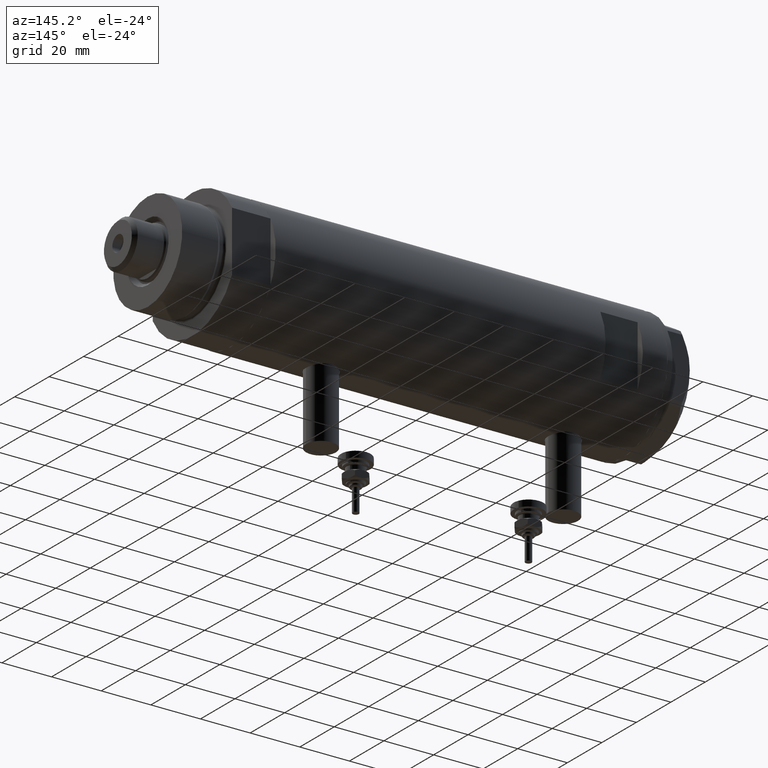
[diagram: clean part render]
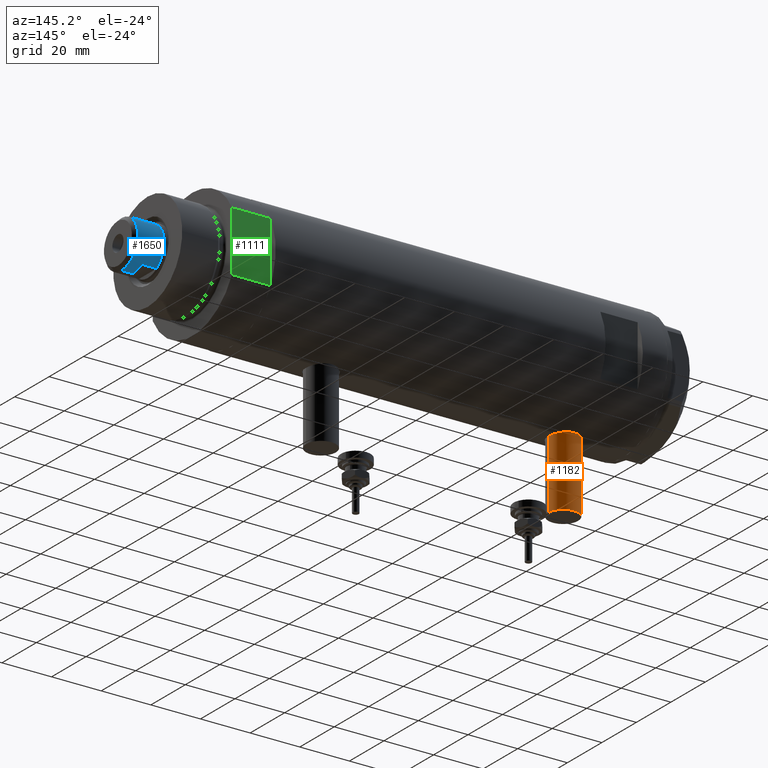
[diagram: same view with three faces highlighted in distinct colors, each labeled with its STEP entity id]
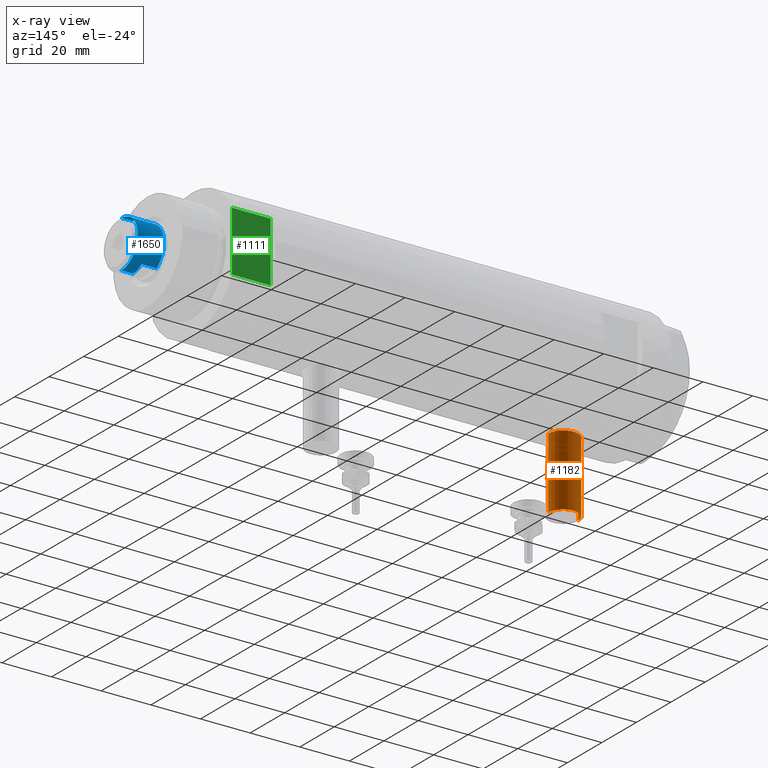
[diagram: x-ray of the same camera — body ghosted, the three highlighted faces saturated]
A machine part, auxiliary view with three faces highlighted in distinct colors.
The next image is the same camera in x-ray (body ghosted, the three faces saturated) — at least one of them is partly hidden behind the body in this view.
Their STEP definitions:

[orange] entity #1182 — the highlighted cylindrical surface (edge-blend (fillet) strip) has radius 6 mm, axis along (0, 0, 1).
#272 = CARTESIAN_POINT ( 'NONE',  ( -53.40000000000000568, 7.347880794884112834E-16, 60.95000000000000284 ) ) ;
#311 = AXIS2_PLACEMENT_3D ( 'NONE', #2004, #5467, #2961 ) ;
#419 = FACE_OUTER_BOUND ( 'NONE', #3730, .T. ) ;
#555 = EDGE_CURVE ( 'NONE', #4449, #6210, #3184, .T. ) ;
#969 = CARTESIAN_POINT ( 'NONE',  ( -24.80000000000000426, 7.347880794884108889E-16, 60.95000000000000284 ) ) ;
#1056 = ORIENTED_EDGE ( 'NONE', *, *, #555, .T. ) ;
#1144 = LINE ( 'NONE', #3613, #4295 ) ;
#1182 = ADVANCED_FACE ( 'NONE', ( #419 ), #3771, .T. ) ;
#1190 = VERTEX_POINT ( 'NONE', #5134 ) ;
#1294 = ORIENTED_EDGE ( 'NONE', *, *, #1890, .F. ) ;
#1311 = DIRECTION ( 'NONE',  ( 0.000000000000000000, 0.000000000000000000, -1.000000000000000000 ) ) ;
#1335 = EDGE_CURVE ( 'NONE', #1190, #6242, #1144, .T. ) ;
#1346 = DIRECTION ( 'NONE',  ( 1.000000000000000000, -0.000000000000000000, -0.000000000000000000 ) ) ;
#1551 = EDGE_CURVE ( 'NONE', #6210, #6242, #5401, .T. ) ;
#1643 = CIRCLE ( 'NONE', #2873, 5.999999999999998224 ) ;
#1678 = DIRECTION ( 'NONE',  ( 1.000000000000000000, -0.000000000000000000, -0.000000000000000000 ) ) ;
#1890 = EDGE_CURVE ( 'NONE', #4449, #1190, #1643, .T. ) ;
#1904 = CARTESIAN_POINT ( 'NONE',  ( -53.40000000000000568, 0.000000000000000000, 54.95000000000000284 ) ) ;
#1915 = CARTESIAN_POINT ( 'NONE',  ( -53.40000000000000568, 7.347880794884108889E-16, 60.95000000000000284 ) ) ;
#2004 = CARTESIAN_POINT ( 'NONE',  ( -24.80000000000000426, 0.000000000000000000, 54.95000000000000284 ) ) ;
#2282 = CARTESIAN_POINT ( 'NONE',  ( -53.40000000000000568, 0.000000000000000000, 54.95000000000000284 ) ) ;
#2295 = DIRECTION ( 'NONE',  ( -1.000000000000000000, 0.000000000000000000, 0.000000000000000000 ) ) ;
#2312 = ORIENTED_EDGE ( 'NONE', *, *, #1335, .F. ) ;
#2362 = AXIS2_PLACEMENT_3D ( 'NONE', #2282, #1346, #1311 ) ;
#2873 = AXIS2_PLACEMENT_3D ( 'NONE', #1904, #2295, #5241 ) ;
#2961 = DIRECTION ( 'NONE',  ( 0.000000000000000000, 0.000000000000000000, 1.000000000000000000 ) ) ;
#3111 = DIRECTION ( 'NONE',  ( 1.000000000000000000, -0.000000000000000000, -0.000000000000000000 ) ) ;
#3184 = LINE ( 'NONE', #272, #5797 ) ;
#3286 = ORIENTED_EDGE ( 'NONE', *, *, #1551, .T. ) ;
#3613 = CARTESIAN_POINT ( 'NONE',  ( -53.40000000000000568, 0.000000000000000000, 48.95000000000000995 ) ) ;
#3730 = EDGE_LOOP ( 'NONE', ( #1294, #1056, #3286, #2312 ) ) ;
#3771 = CYLINDRICAL_SURFACE ( 'NONE', #2362, 5.999999999999998224 ) ;
#4295 = VECTOR ( 'NONE', #3111, 1000.000000000000000 ) ;
#4449 = VERTEX_POINT ( 'NONE', #1915 ) ;
#5134 = CARTESIAN_POINT ( 'NONE',  ( -53.40000000000000568, 0.000000000000000000, 48.95000000000000995 ) ) ;
#5241 = DIRECTION ( 'NONE',  ( 0.000000000000000000, 0.000000000000000000, 1.000000000000000000 ) ) ;
#5401 = CIRCLE ( 'NONE', #311, 5.999999999999998224 ) ;
#5408 = CARTESIAN_POINT ( 'NONE',  ( -24.80000000000000426, 0.000000000000000000, 48.95000000000000995 ) ) ;
#5467 = DIRECTION ( 'NONE',  ( -1.000000000000000000, 0.000000000000000000, 0.000000000000000000 ) ) ;
#5797 = VECTOR ( 'NONE', #1678, 1000.000000000000000 ) ;
#6210 = VERTEX_POINT ( 'NONE', #969 ) ;
#6242 = VERTEX_POINT ( 'NONE', #5408 ) ;

[blue] entity #1650 — the highlighted cylindrical surface (edge-blend (fillet) strip) has radius 9.5 mm, axis along (-1, -0, 0).
#123 = VERTEX_POINT ( 'NONE', #5054 ) ;
#131 = CIRCLE ( 'NONE', #2589, 9.500000000000000000 ) ;
#234 = CARTESIAN_POINT ( 'NONE',  ( 9.500000000000000000, 1.163414459189985485E-15, 173.6000000000000227 ) ) ;
#386 = LINE ( 'NONE', #4194, #613 ) ;
#613 = VECTOR ( 'NONE', #6130, 1000.000000000000000 ) ;
#699 = LINE ( 'NONE', #5101, #4384 ) ;
#770 = CARTESIAN_POINT ( 'NONE',  ( 9.500000000000001776, 1.163414459189985682E-15, 178.2000000000000171 ) ) ;
#808 = DIRECTION ( 'NONE',  ( -0.000000000000000000, -0.000000000000000000, -1.000000000000000000 ) ) ;
#934 = AXIS2_PLACEMENT_3D ( 'NONE', #1392, #1295, #2832 ) ;
#947 = EDGE_CURVE ( 'NONE', #5359, #2592, #699, .T. ) ;
#1018 = AXIS2_PLACEMENT_3D ( 'NONE', #5370, #4955, #5981 ) ;
#1129 = CARTESIAN_POINT ( 'NONE',  ( 9.500000000000001776, 1.163414459189985682E-15, 173.6000000000000227 ) ) ;
#1189 = EDGE_CURVE ( 'NONE', #3319, #1975, #386, .T. ) ;
#1199 = VERTEX_POINT ( 'NONE', #770 ) ;
#1295 = DIRECTION ( 'NONE',  ( 0.000000000000000000, 0.000000000000000000, -1.000000000000000000 ) ) ;
#1332 = VECTOR ( 'NONE', #1520, 1000.000000000000000 ) ;
#1368 = CARTESIAN_POINT ( 'NONE',  ( -7.982950582334830791, 5.149999999999999467, 173.6000000000000227 ) ) ;
#1392 = CARTESIAN_POINT ( 'NONE',  ( 0.000000000000000000, 0.000000000000000000, 178.2000000000000171 ) ) ;
#1520 = DIRECTION ( 'NONE',  ( -0.000000000000000000, -0.000000000000000000, -1.000000000000000000 ) ) ;
#1541 = EDGE_CURVE ( 'NONE', #1199, #2161, #1614, .T. ) ;
#1557 = FACE_OUTER_BOUND ( 'NONE', #2328, .T. ) ;
#1598 = CARTESIAN_POINT ( 'NONE',  ( 0.000000000000000000, 0.000000000000000000, 167.6000000000000227 ) ) ;
#1614 = LINE ( 'NONE', #1129, #1332 ) ;
#1650 = ADVANCED_FACE ( 'NONE', ( #1557 ), #3445, .T. ) ;
#1653 = ORIENTED_EDGE ( 'NONE', *, *, #1541, .T. ) ;
#1698 = ORIENTED_EDGE ( 'NONE', *, *, #1189, .F. ) ;
#1702 = DIRECTION ( 'NONE',  ( -0.000000000000000000, -0.000000000000000000, -1.000000000000000000 ) ) ;
#1744 = DIRECTION ( 'NONE',  ( 1.000000000000000000, 0.000000000000000000, 0.000000000000000000 ) ) ;
#1753 = AXIS2_PLACEMENT_3D ( 'NONE', #1598, #2145, #4124 ) ;
#1869 = CARTESIAN_POINT ( 'NONE',  ( -9.500000000000000000, 0.000000000000000000, 173.6000000000000227 ) ) ;
#1913 = ORIENTED_EDGE ( 'NONE', *, *, #2481, .T. ) ;
#1959 = CIRCLE ( 'NONE', #1753, 9.500000000000023093 ) ;
#1975 = VERTEX_POINT ( 'NONE', #1869 ) ;
#1981 = CIRCLE ( 'NONE', #2789, 9.500000000000000000 ) ;
#2145 = DIRECTION ( 'NONE',  ( 0.000000000000000000, 0.000000000000000000, 1.000000000000000000 ) ) ;
#2161 = VERTEX_POINT ( 'NONE', #234 ) ;
#2297 = DIRECTION ( 'NONE',  ( 0.000000000000000000, 0.000000000000000000, 1.000000000000000000 ) ) ;
#2328 = EDGE_LOOP ( 'NONE', ( #5535, #1653, #4467, #5181, #1913, #2475, #3929, #1698 ) ) ;
#2394 = LINE ( 'NONE', #6280, #4107 ) ;
#2475 = ORIENTED_EDGE ( 'NONE', *, *, #3466, .F. ) ;
#2481 = EDGE_CURVE ( 'NONE', #2592, #123, #1959, .T. ) ;
#2589 = AXIS2_PLACEMENT_3D ( 'NONE', #6017, #3129, #1744 ) ;
#2592 = VERTEX_POINT ( 'NONE', #4522 ) ;
#2767 = CARTESIAN_POINT ( 'NONE',  ( 0.000000000000000000, 0.000000000000000000, 173.6000000000000227 ) ) ;
#2789 = AXIS2_PLACEMENT_3D ( 'NONE', #2767, #2297, #3845 ) ;
#2832 = DIRECTION ( 'NONE',  ( 1.000000000000000000, 0.000000000000000000, 0.000000000000000000 ) ) ;
#3129 = DIRECTION ( 'NONE',  ( 0.000000000000000000, 0.000000000000000000, 1.000000000000000000 ) ) ;
#3230 = VERTEX_POINT ( 'NONE', #1368 ) ;
#3319 = VERTEX_POINT ( 'NONE', #3946 ) ;
#3445 = CYLINDRICAL_SURFACE ( 'NONE', #1018, 9.500000000000001776 ) ;
#3466 = EDGE_CURVE ( 'NONE', #3230, #123, #2394, .T. ) ;
#3509 = EDGE_CURVE ( 'NONE', #2161, #5359, #1981, .T. ) ;
#3845 = DIRECTION ( 'NONE',  ( 1.000000000000000000, 0.000000000000000000, 0.000000000000000000 ) ) ;
#3929 = ORIENTED_EDGE ( 'NONE', *, *, #4687, .T. ) ;
#3946 = CARTESIAN_POINT ( 'NONE',  ( -9.500000000000001776, 0.000000000000000000, 178.2000000000000171 ) ) ;
#4105 = CIRCLE ( 'NONE', #934, 9.500000000000001776 ) ;
#4107 = VECTOR ( 'NONE', #808, 1000.000000000000000 ) ;
#4124 = DIRECTION ( 'NONE',  ( 1.000000000000000000, 0.000000000000000000, 0.000000000000000000 ) ) ;
#4194 = CARTESIAN_POINT ( 'NONE',  ( -9.500000000000001776, 0.000000000000000000, 173.6000000000000227 ) ) ;
#4384 = VECTOR ( 'NONE', #1702, 1000.000000000000000 ) ;
#4467 = ORIENTED_EDGE ( 'NONE', *, *, #3509, .T. ) ;
#4522 = CARTESIAN_POINT ( 'NONE',  ( 7.982950582334830791, 5.149999999999999467, 167.6000000000000227 ) ) ;
#4687 = EDGE_CURVE ( 'NONE', #3230, #1975, #131, .T. ) ;
#4749 = CARTESIAN_POINT ( 'NONE',  ( 7.982950582334830791, 5.149999999999999467, 173.6000000000000227 ) ) ;
#4808 = EDGE_CURVE ( 'NONE', #3319, #1199, #4105, .T. ) ;
#4955 = DIRECTION ( 'NONE',  ( -0.000000000000000000, -0.000000000000000000, -1.000000000000000000 ) ) ;
#5054 = CARTESIAN_POINT ( 'NONE',  ( -7.982950582334829015, 5.150000000000040323, 167.6000000000000227 ) ) ;
#5101 = CARTESIAN_POINT ( 'NONE',  ( 7.982950582334830791, 5.149999999999999467, 173.6000000000000227 ) ) ;
#5181 = ORIENTED_EDGE ( 'NONE', *, *, #947, .T. ) ;
#5359 = VERTEX_POINT ( 'NONE', #4749 ) ;
#5370 = CARTESIAN_POINT ( 'NONE',  ( 0.000000000000000000, 0.000000000000000000, 173.6000000000000227 ) ) ;
#5535 = ORIENTED_EDGE ( 'NONE', *, *, #4808, .T. ) ;
#5981 = DIRECTION ( 'NONE',  ( -1.000000000000000000, 0.000000000000000000, 0.000000000000000000 ) ) ;
#6017 = CARTESIAN_POINT ( 'NONE',  ( 0.000000000000000000, 0.000000000000000000, 173.6000000000000227 ) ) ;
#6130 = DIRECTION ( 'NONE',  ( -0.000000000000000000, -0.000000000000000000, -1.000000000000000000 ) ) ;
#6280 = CARTESIAN_POINT ( 'NONE',  ( -7.982950582334830791, 5.149999999999999467, 173.6000000000000227 ) ) ;

[green] entity #1111 — the highlighted planar face has unit normal (0, -1, -0).
#19 = VECTOR ( 'NONE', #962, 1000.000000000000000 ) ;
#626 = VECTOR ( 'NONE', #5344, 1000.000000000000000 ) ;
#718 = ORIENTED_EDGE ( 'NONE', *, *, #4373, .T. ) ;
#740 = VECTOR ( 'NONE', #5299, 1000.000000000000000 ) ;
#962 = DIRECTION ( 'NONE',  ( -0.000000000000000000, -0.000000000000000000, 1.000000000000000000 ) ) ;
#1111 = ADVANCED_FACE ( 'NONE', ( #4319 ), #5257, .F. ) ;
#1361 = CARTESIAN_POINT ( 'NONE',  ( -12.12435565298215145, 23.00000000000000355, 0.000000000000000000 ) ) ;
#1464 = CARTESIAN_POINT ( 'NONE',  ( -12.12435565298215145, 23.00000000000000355, 15.50000000000000000 ) ) ;
#1777 = VERTEX_POINT ( 'NONE', #3630 ) ;
#2226 = CARTESIAN_POINT ( 'NONE',  ( -12.12435565298214613, 23.00000000000000355, 15.50000000000000000 ) ) ;
#2236 = ORIENTED_EDGE ( 'NONE', *, *, #5073, .T. ) ;
#2448 = CARTESIAN_POINT ( 'NONE',  ( -12.12435565298215145, 23.00000000000000355, 0.000000000000000000 ) ) ;
#2564 = AXIS2_PLACEMENT_3D ( 'NONE', #3306, #6267, #2847 ) ;
#2847 = DIRECTION ( 'NONE',  ( 0.000000000000000000, -0.000000000000000000, -1.000000000000000000 ) ) ;
#2861 = VERTEX_POINT ( 'NONE', #5958 ) ;
#2878 = LINE ( 'NONE', #3892, #5736 ) ;
#3306 = CARTESIAN_POINT ( 'NONE',  ( -12.12435565298215145, 23.00000000000000355, 0.000000000000000000 ) ) ;
#3413 = LINE ( 'NONE', #5336, #19 ) ;
#3541 = EDGE_CURVE ( 'NONE', #3664, #1777, #4330, .T. ) ;
#3630 = CARTESIAN_POINT ( 'NONE',  ( 12.12435565298214080, 23.00000000000000355, 0.000000000000000000 ) ) ;
#3664 = VERTEX_POINT ( 'NONE', #2448 ) ;
#3688 = ORIENTED_EDGE ( 'NONE', *, *, #5790, .F. ) ;
#3892 = CARTESIAN_POINT ( 'NONE',  ( 12.12435565298215323, 23.00000000000000355, 0.000000000000000000 ) ) ;
#4156 = LINE ( 'NONE', #1464, #626 ) ;
#4319 = FACE_OUTER_BOUND ( 'NONE', #4643, .T. ) ;
#4330 = LINE ( 'NONE', #1361, #740 ) ;
#4373 = EDGE_CURVE ( 'NONE', #5234, #2861, #4156, .T. ) ;
#4643 = EDGE_LOOP ( 'NONE', ( #718, #3688, #4758, #2236 ) ) ;
#4758 = ORIENTED_EDGE ( 'NONE', *, *, #3541, .F. ) ;
#4935 = DIRECTION ( 'NONE',  ( -0.000000000000000000, -0.000000000000000000, 1.000000000000000000 ) ) ;
#5073 = EDGE_CURVE ( 'NONE', #3664, #5234, #3413, .T. ) ;
#5234 = VERTEX_POINT ( 'NONE', #2226 ) ;
#5257 = PLANE ( 'NONE',  #2564 ) ;
#5299 = DIRECTION ( 'NONE',  ( 1.000000000000000000, 0.000000000000000000, 0.000000000000000000 ) ) ;
#5336 = CARTESIAN_POINT ( 'NONE',  ( -12.12435565298215145, 23.00000000000000355, 0.000000000000000000 ) ) ;
#5344 = DIRECTION ( 'NONE',  ( 1.000000000000000000, 0.000000000000000000, 0.000000000000000000 ) ) ;
#5736 = VECTOR ( 'NONE', #4935, 1000.000000000000000 ) ;
#5790 = EDGE_CURVE ( 'NONE', #1777, #2861, #2878, .T. ) ;
#5958 = CARTESIAN_POINT ( 'NONE',  ( 12.12435565298214790, 23.00000000000000355, 15.50000000000000000 ) ) ;
#6267 = DIRECTION ( 'NONE',  ( 0.000000000000000000, -1.000000000000000000, 0.000000000000000000 ) ) ;